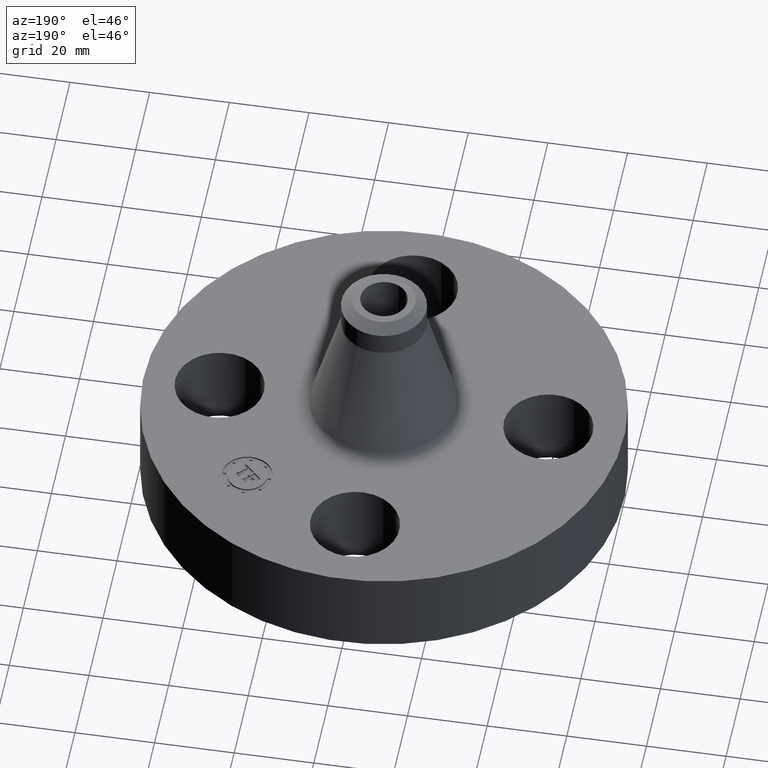
[diagram: clean part render]
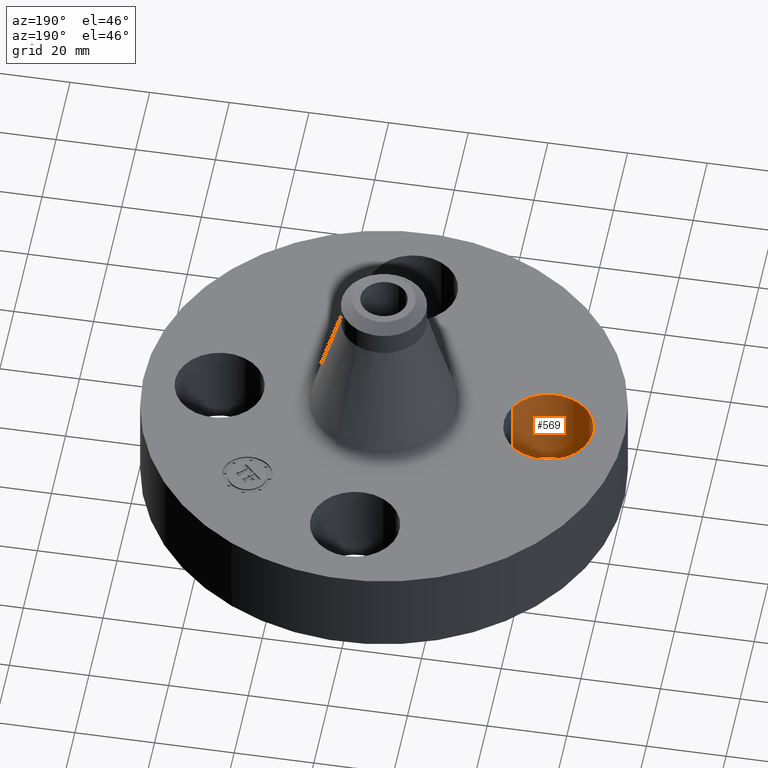
[diagram: same view with one face highlighted and labeled with its STEP entity id]
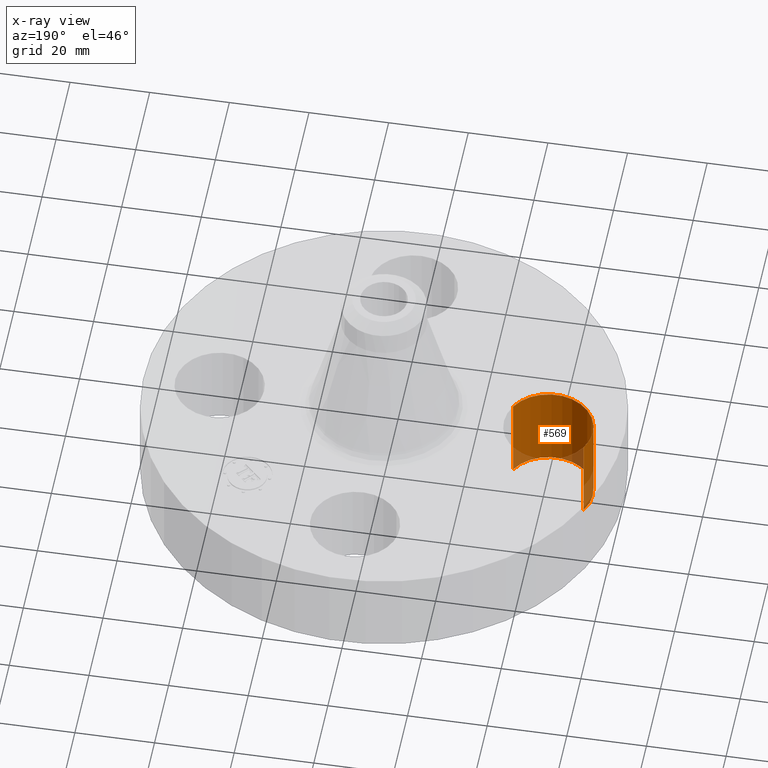
[diagram: x-ray of the same camera — body ghosted, the highlighted face saturated]
A machine part, auxiliary view. The second image highlights one B-rep face of the part: STEP entity #569.
The next image is the same camera in x-ray: the body ghosted, the highlighted face saturated — about 12% of this face is hidden behind the body in this view.
In plain terms, the highlighted cylindrical surface (partial cylindrical patch) has radius 11.176 mm, axis along (-0, 0, -1).
Its self-contained STEP definition (entity closure, byte-faithful):
#461=AXIS2_PLACEMENT_3D('Circle Axis2P3D',#459,#460,$) ;
#542=AXIS2_PLACEMENT_3D('Cylinder Axis2P3D',#539,#540,#541) ;
#560=AXIS2_PLACEMENT_3D('Circle Axis2P3D',#558,#559,$) ;
#459=CARTESIAN_POINT('Axis2P3D Location',(-1.62500000001,-1.74838271595E-016,0.)) ;
#463=CARTESIAN_POINT('Vertex',(-1.23886367277,-0.210947236987,0.)) ;
#465=CARTESIAN_POINT('Vertex',(-2.01113632724,0.210947236987,0.)) ;
#539=CARTESIAN_POINT('Axis2P3D Location',(-1.62500000001,-1.99005104862E-016,0.87606299213)) ;
#544=CARTESIAN_POINT('Line Origine',(-1.23886367277,-0.210947236987,0.440000000002)) ;
#548=CARTESIAN_POINT('Vertex',(-1.23886367277,-0.210947236987,0.880000000004)) ;
#551=CARTESIAN_POINT('Line Origine',(-2.01113632724,0.210947236987,0.440000000002)) ;
#555=CARTESIAN_POINT('Vertex',(-2.01113632724,0.210947236987,0.880000000004)) ;
#558=CARTESIAN_POINT('Axis2P3D Location',(-1.62500000001,-1.99005104862E-016,0.880000000004)) ;
#460=DIRECTION('Axis2P3D Direction',(0.,0.,-0.0393700787402)) ;
#540=DIRECTION('Axis2P3D Direction',(-0.,0.,-0.0393700787402)) ;
#541=DIRECTION('Axis2P3D XDirection',(-0.0345504945626,0.0188750212049,0.)) ;
#545=DIRECTION('Vector Direction',(0.,0.,-0.0393700787402)) ;
#552=DIRECTION('Vector Direction',(0.,0.,-0.0393700787402)) ;
#559=DIRECTION('Axis2P3D Direction',(-0.,0.,-0.0393700787402)) ;
#546=VECTOR('Line Direction',#545,0.0393700787402) ;
#553=VECTOR('Line Direction',#552,0.0393700787402) ;
#564=ORIENTED_EDGE('',*,*,#550,.F.) ;
#565=ORIENTED_EDGE('',*,*,#467,.T.) ;
#566=ORIENTED_EDGE('',*,*,#557,.T.) ;
#567=ORIENTED_EDGE('',*,*,#562,.F.) ;
#569=ADVANCED_FACE('PartBody',(#568),#543,.F.) ;
#462=CIRCLE('generated circle',#461,0.440000000002) ;
#561=CIRCLE('generated circle',#560,0.440000000002) ;
#543=CYLINDRICAL_SURFACE('generated cylinder',#542,0.440000000002) ;
#467=EDGE_CURVE('',#464,#466,#462,.T.) ;
#550=EDGE_CURVE('',#464,#549,#547,.F.) ;
#557=EDGE_CURVE('',#466,#556,#554,.F.) ;
#562=EDGE_CURVE('',#549,#556,#561,.T.) ;
#563=EDGE_LOOP('',(#564,#565,#566,#567)) ;
#568=FACE_OUTER_BOUND('',#563,.T.) ;
#547=LINE('Line',#544,#546) ;
#554=LINE('Line',#551,#553) ;
#464=VERTEX_POINT('',#463) ;
#466=VERTEX_POINT('',#465) ;
#549=VERTEX_POINT('',#548) ;
#556=VERTEX_POINT('',#555) ;